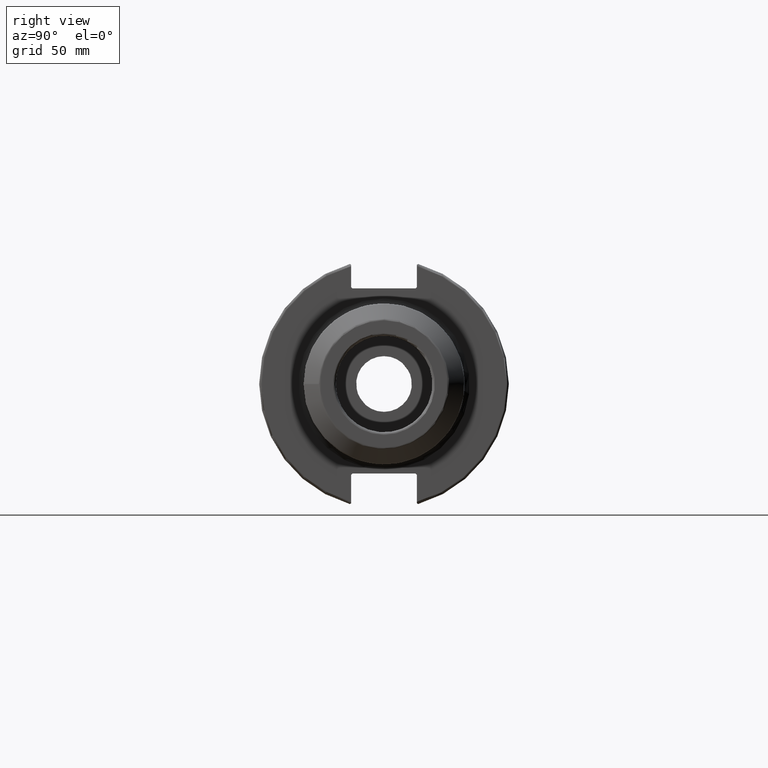
[diagram: clean part render]
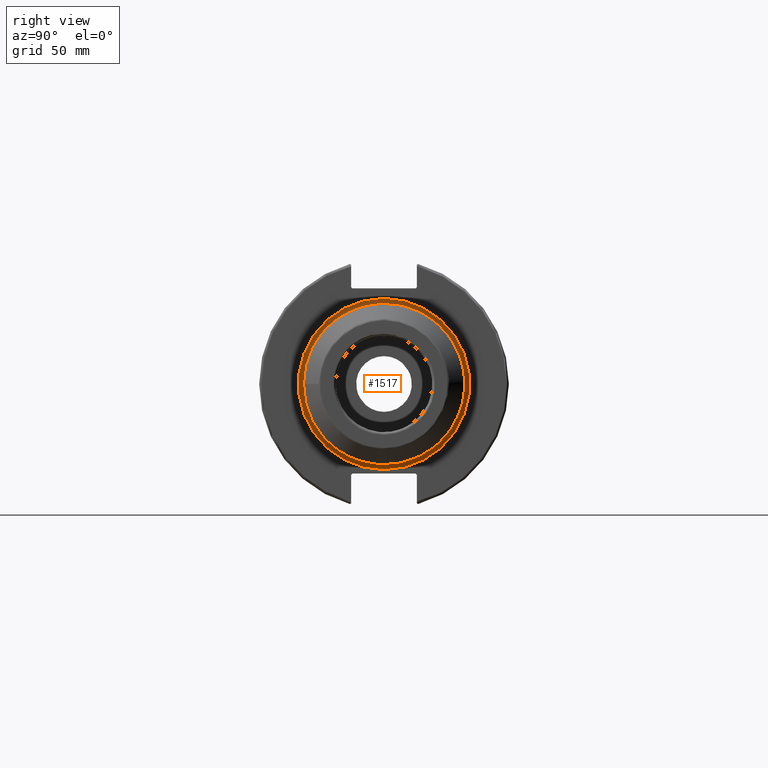
[diagram: same view with one face highlighted and labeled with its STEP entity id]
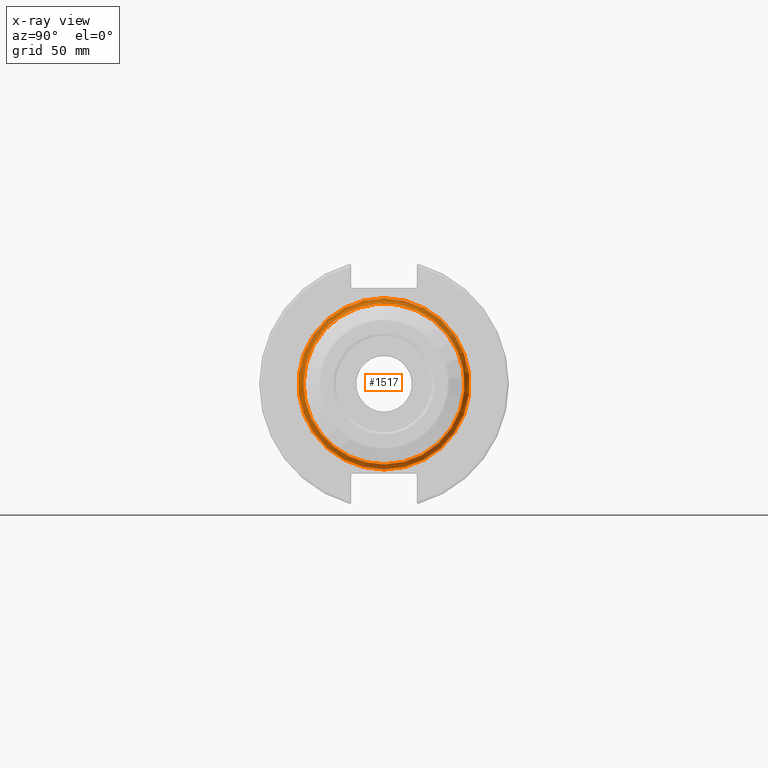
[diagram: x-ray of the same camera — body ghosted, the highlighted face saturated]
A machine part, right view. The second image highlights one B-rep face of the part: STEP entity #1517.
The next image is the same camera in x-ray: the body ghosted, the highlighted face saturated — about 5% of this face is hidden behind the body in this view.
In plain terms, the highlighted toroidal blend (fillet) surface has major radius 33.75 mm and minor (blend) radius 2 mm.
Its self-contained STEP definition (entity closure, byte-faithful):
#97=TOROIDAL_SURFACE('',#1645,33.75,2.);
#142=FACE_OUTER_BOUND('',#234,.T.);
#234=EDGE_LOOP('',(#1090,#1091,#1092,#1093,#1094));
#338=CIRCLE('',#1632,31.75);
#339=CIRCLE('',#1633,31.75);
#347=CIRCLE('',#1646,2.);
#348=CIRCLE('',#1647,33.75);
#652=VERTEX_POINT('',#2392);
#653=VERTEX_POINT('',#2394);
#659=VERTEX_POINT('',#2415);
#817=EDGE_CURVE('',#653,#652,#338,.T.);
#818=EDGE_CURVE('',#652,#653,#339,.T.);
#827=EDGE_CURVE('',#653,#659,#347,.T.);
#828=EDGE_CURVE('',#659,#659,#348,.T.);
#1090=ORIENTED_EDGE('',*,*,#818,.T.);
#1091=ORIENTED_EDGE('',*,*,#827,.T.);
#1092=ORIENTED_EDGE('',*,*,#828,.T.);
#1093=ORIENTED_EDGE('',*,*,#827,.F.);
#1094=ORIENTED_EDGE('',*,*,#817,.T.);
#1517=ADVANCED_FACE('',(#142),#97,.F.);
#1632=AXIS2_PLACEMENT_3D('',#2395,#1822,#1823);
#1633=AXIS2_PLACEMENT_3D('',#2396,#1824,#1825);
#1645=AXIS2_PLACEMENT_3D('',#2414,#1849,#1850);
#1646=AXIS2_PLACEMENT_3D('',#2416,#1851,#1852);
#1647=AXIS2_PLACEMENT_3D('',#2417,#1853,#1854);
#1822=DIRECTION('center_axis',(-1.,0.,0.));
#1823=DIRECTION('ref_axis',(0.,-1.,-1.22464679914735E-16));
#1824=DIRECTION('center_axis',(-1.,0.,0.));
#1825=DIRECTION('ref_axis',(0.,-1.,-1.22464679914735E-16));
#1849=DIRECTION('center_axis',(-1.,0.,0.));
#1850=DIRECTION('ref_axis',(0.,0.,1.));
#1851=DIRECTION('center_axis',(0.,-1.,1.22464679914735E-16));
#1852=DIRECTION('ref_axis',(0.,-1.22464679914735E-16,-1.));
#1853=DIRECTION('center_axis',(1.,0.,0.));
#1854=DIRECTION('ref_axis',(0.,-1.,-1.22464679914735E-16));
#2392=CARTESIAN_POINT('',(21.05,-31.75,-3.88825358729285E-15));
#2394=CARTESIAN_POINT('',(21.05,-3.88825358729285E-15,-31.75));
#2395=CARTESIAN_POINT('Origin',(21.05,0.,0.));
#2396=CARTESIAN_POINT('Origin',(21.05,0.,0.));
#2414=CARTESIAN_POINT('Origin',(21.05,0.,0.));
#2415=CARTESIAN_POINT('',(19.05,-4.13318294712232E-15,-33.75));
#2416=CARTESIAN_POINT('Origin',(21.05,-4.13318294712232E-15,-33.75));
#2417=CARTESIAN_POINT('Origin',(19.05,0.,0.));